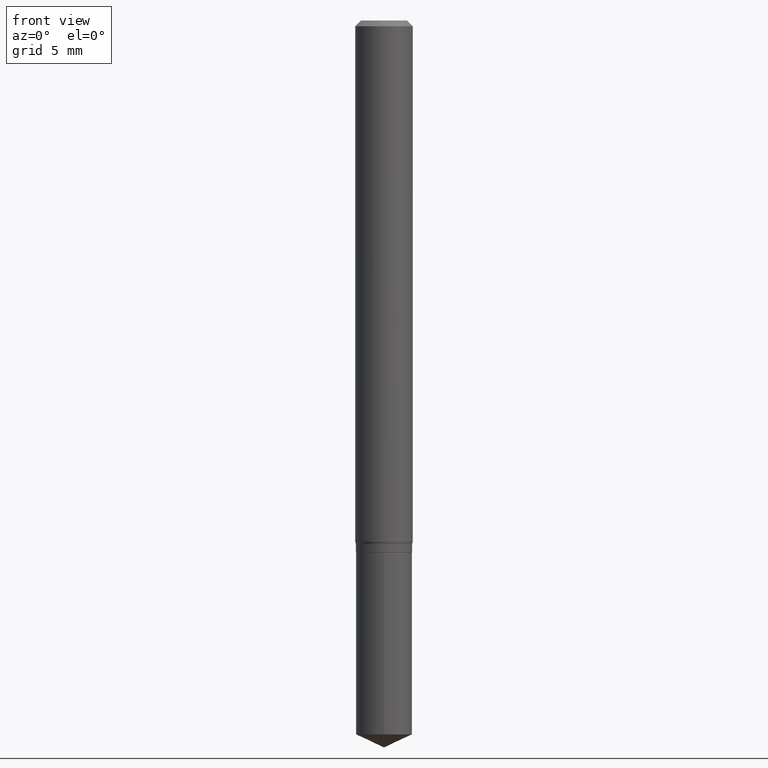
[diagram: clean part render]
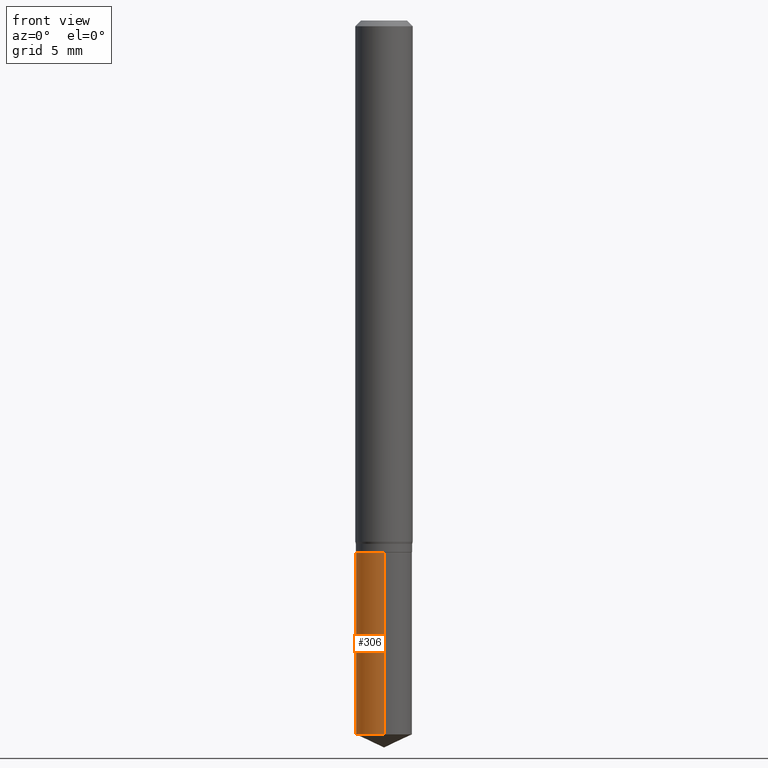
[diagram: same view with one face highlighted and labeled with its STEP entity id]
A machine part, front view. The second image highlights one B-rep face of the part: STEP entity #306.
In plain terms, the highlighted cylindrical surface (edge-blend (fillet) strip) has radius 1.4694 mm, axis along (-0, 0, 1).
Its self-contained STEP definition (entity closure, byte-faithful):
#15 = EDGE_CURVE ( 'NONE', #142, #489, #448, .T. ) ;
#16 = CARTESIAN_POINT ( 'NONE',  ( 3.592693452449994614E-29, -5.129424701352268102E-15, -1.469124101975733288 ) ) ;
#33 = CIRCLE ( 'NONE', #292, 0.05784999999999999865 ) ;
#43 = FACE_OUTER_BOUND ( 'NONE', #309, .T. ) ;
#72 = DIRECTION ( 'NONE',  ( -2.445458899330790108E-29, 3.491495526022433599E-15, 1.000000000000000000 ) ) ;
#73 = VECTOR ( 'NONE', #263, 39.37007874015748143 ) ;
#76 = EDGE_CURVE ( 'NONE', #439, #142, #33, .T. ) ;
#79 = CYLINDRICAL_SURFACE ( 'NONE', #171, 0.05784999999999999865 ) ;
#105 = VERTEX_POINT ( 'NONE', #432 ) ;
#109 = CARTESIAN_POINT ( 'NONE',  ( -4.039643909041237478E-16, -0.05785000000000382198, -1.094499999999999806 ) ) ;
#125 = CARTESIAN_POINT ( 'NONE',  ( 2.676565608369631794E-29, -3.821426325363822773E-15, -1.094499999999999806 ) ) ;
#128 = EDGE_CURVE ( 'NONE', #105, #489, #450, .T. ) ;
#142 = VERTEX_POINT ( 'NONE', #421 ) ;
#153 = DIRECTION ( 'NONE',  ( -6.982962677686265922E-15, -1.000000000000000000, 2.361147790548196524E-15 ) ) ;
#155 = ORIENTED_EDGE ( 'NONE', *, *, #128, .F. ) ;
#160 = DIRECTION ( 'NONE',  ( -6.982962677686265922E-15, -1.000000000000000000, 2.361147790548196524E-15 ) ) ;
#165 = CARTESIAN_POINT ( 'NONE',  ( 4.110489726372537918E-16, 0.05784999999999485693, -1.469124101975733732 ) ) ;
#171 = AXIS2_PLACEMENT_3D ( 'NONE', #228, #490, #153 ) ;
#172 = DIRECTION ( 'NONE',  ( -6.982962677686265922E-15, -1.000000000000000000, 4.722295581096393049E-15 ) ) ;
#211 = DIRECTION ( 'NONE',  ( -2.445458899330790108E-29, 3.491495526022433205E-15, 1.000000000000000000 ) ) ;
#224 = ORIENTED_EDGE ( 'NONE', *, *, #289, .F. ) ;
#228 = CARTESIAN_POINT ( 'NONE',  ( 2.676565608369631794E-29, -3.821426325363822773E-15, -1.094499999999999806 ) ) ;
#263 = DIRECTION ( 'NONE',  ( -2.445458899330790108E-29, 3.491495526022433599E-15, 1.000000000000000000 ) ) ;
#270 = LINE ( 'NONE', #410, #485 ) ;
#289 = EDGE_CURVE ( 'NONE', #439, #105, #270, .T. ) ;
#292 = AXIS2_PLACEMENT_3D ( 'NONE', #16, #211, #172 ) ;
#306 = ADVANCED_FACE ( 'NONE', ( #43 ), #79, .T. ) ;
#309 = EDGE_LOOP ( 'NONE', ( #224, #322, #403, #155 ) ) ;
#322 = ORIENTED_EDGE ( 'NONE', *, *, #76, .T. ) ;
#403 = ORIENTED_EDGE ( 'NONE', *, *, #15, .T. ) ;
#410 = CARTESIAN_POINT ( 'NONE',  ( 4.110489726372446213E-16, 0.05784999999999617531, -1.094500000000000028 ) ) ;
#421 = CARTESIAN_POINT ( 'NONE',  ( -4.039643909041145280E-16, -0.05785000000000512649, -1.469124101975733065 ) ) ;
#432 = CARTESIAN_POINT ( 'NONE',  ( 4.110489726372538411E-16, 0.05784999999999617531, -1.094500000000000028 ) ) ;
#439 = VERTEX_POINT ( 'NONE', #165 ) ;
#445 = AXIS2_PLACEMENT_3D ( 'NONE', #125, #464, #160 ) ;
#448 = LINE ( 'NONE', #109, #73 ) ;
#450 = CIRCLE ( 'NONE', #445, 0.05784999999999999865 ) ;
#464 = DIRECTION ( 'NONE',  ( -2.445458899330790108E-29, 3.491495526022433205E-15, 1.000000000000000000 ) ) ;
#478 = CARTESIAN_POINT ( 'NONE',  ( -4.039643909041237478E-16, -0.05785000000000382198, -1.094499999999999806 ) ) ;
#485 = VECTOR ( 'NONE', #72, 39.37007874015748143 ) ;
#489 = VERTEX_POINT ( 'NONE', #478 ) ;
#490 = DIRECTION ( 'NONE',  ( -2.445458899330790108E-29, 3.491495526022433205E-15, 1.000000000000000000 ) ) ;